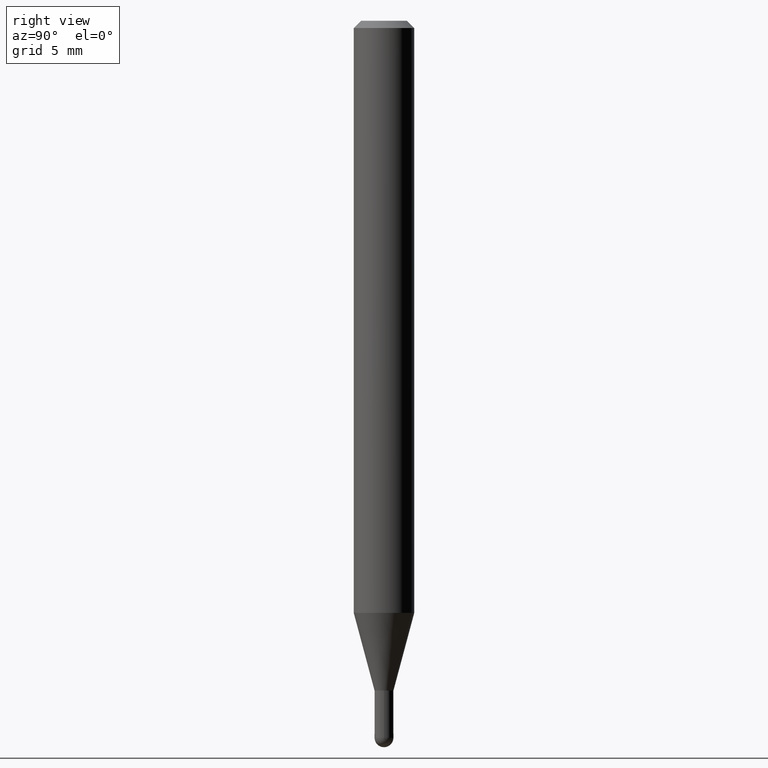
[diagram: clean part render]
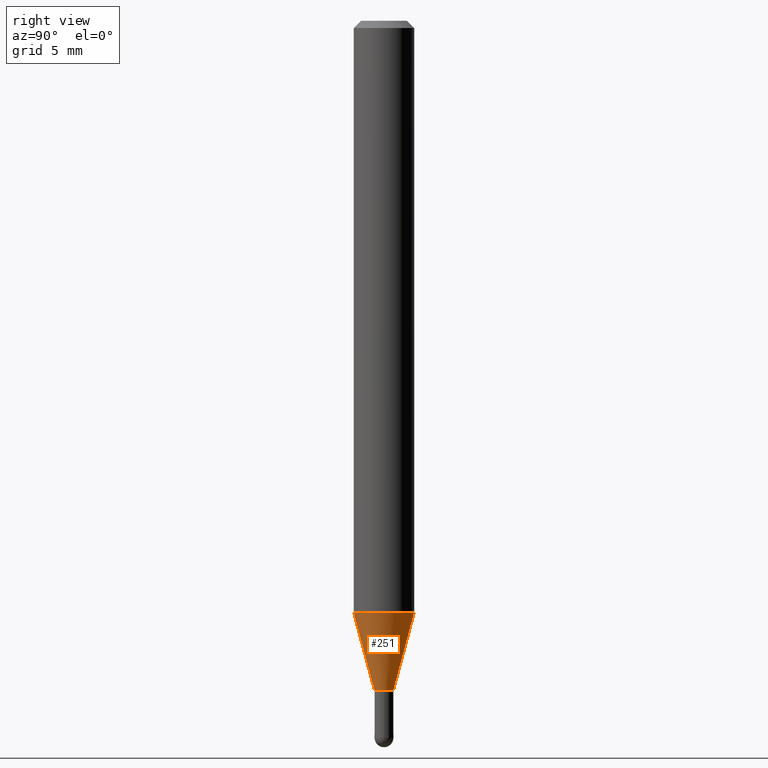
[diagram: same view with one face highlighted and labeled with its STEP entity id]
A machine part, right view. The second image highlights one B-rep face of the part: STEP entity #251.
In plain terms, the highlighted conical surface has half-angle 15 deg.
Its self-contained STEP definition (entity closure, byte-faithful):
#7 = DIRECTION ( 'NONE',  ( -2.445485132504990036E-29, 3.491457958623879198E-15, 1.000000000000000000 ) ) ;
#15 = DIRECTION ( 'NONE',  ( -6.982962677686265922E-15, -1.000000000000000000, 4.370956789862821150E-15 ) ) ;
#18 = CIRCLE ( 'NONE', #369, 0.06250000000000000000 ) ;
#33 = AXIS2_PLACEMENT_3D ( 'NONE', #467, #138, #302 ) ;
#47 = CARTESIAN_POINT ( 'NONE',  ( 2.989658923416908872E-29, -4.268383521531617927E-15, -1.222521815274543844 ) ) ;
#61 = CIRCLE ( 'NONE', #33, 0.01949999999999992017 ) ;
#66 = LINE ( 'NONE', #386, #164 ) ;
#75 = ORIENTED_EDGE ( 'NONE', *, *, #112, .F. ) ;
#90 = DIRECTION ( 'NONE',  ( -2.445485132504990036E-29, 3.491457958623879198E-15, 1.000000000000000000 ) ) ;
#95 = EDGE_CURVE ( 'NONE', #118, #512, #61, .T. ) ;
#96 = FACE_OUTER_BOUND ( 'NONE', #394, .T. ) ;
#110 = ORIENTED_EDGE ( 'NONE', *, *, #95, .T. ) ;
#112 = EDGE_CURVE ( 'NONE', #118, #402, #66, .T. ) ;
#118 = VERTEX_POINT ( 'NONE', #466 ) ;
#123 = CARTESIAN_POINT ( 'NONE',  ( 1.385558334732527668E-16, 0.01949999999999509417, -1.383000000000000451 ) ) ;
#138 = DIRECTION ( 'NONE',  ( -2.445485132504990036E-29, 3.491457958623879198E-15, 1.000000000000000000 ) ) ;
#141 = DIRECTION ( 'NONE',  ( -1.807323732225381415E-15, -0.2588190451025255134, 0.9659258262890669799 ) ) ;
#164 = VECTOR ( 'NONE', #141, 39.37007874015748854 ) ;
#171 = DIRECTION ( 'NONE',  ( -6.982962677686266711E-15, -1.000000000000000000, 0.000000000000000000 ) ) ;
#215 = CARTESIAN_POINT ( 'NONE',  ( 4.440892098500922971E-16, 0.06249999999999571176, -1.222521815274544066 ) ) ;
#225 = EDGE_CURVE ( 'NONE', #402, #282, #18, .T. ) ;
#251 = ADVANCED_FACE ( 'NONE', ( #96 ), #392, .T. ) ;
#282 = VERTEX_POINT ( 'NONE', #215 ) ;
#302 = DIRECTION ( 'NONE',  ( -6.982962677686266711E-15, -1.000000000000000000, 0.000000000000000000 ) ) ;
#331 = LINE ( 'NONE', #123, #341 ) ;
#341 = VECTOR ( 'NONE', #489, 39.37007874015748143 ) ;
#360 = AXIS2_PLACEMENT_3D ( 'NONE', #414, #90, #171 ) ;
#369 = AXIS2_PLACEMENT_3D ( 'NONE', #47, #7, #15 ) ;
#372 = ORIENTED_EDGE ( 'NONE', *, *, #374, .T. ) ;
#374 = EDGE_CURVE ( 'NONE', #512, #282, #331, .T. ) ;
#386 = CARTESIAN_POINT ( 'NONE',  ( -1.361677722148478193E-16, -0.01950000000000474965, -1.383000000000000451 ) ) ;
#392 = CONICAL_SURFACE ( 'NONE', #360, 0.01949999999999992017, 0.2617993877991578455 ) ;
#394 = EDGE_LOOP ( 'NONE', ( #110, #372, #459, #75 ) ) ;
#402 = VERTEX_POINT ( 'NONE', #460 ) ;
#414 = CARTESIAN_POINT ( 'NONE',  ( 3.382105938254402512E-29, -4.828686356776826992E-15, -1.383000000000000451 ) ) ;
#459 = ORIENTED_EDGE ( 'NONE', *, *, #225, .F. ) ;
#460 = CARTESIAN_POINT ( 'NONE',  ( -4.364351673553619392E-16, -0.06250000000000428824, -1.222521815274543622 ) ) ;
#466 = CARTESIAN_POINT ( 'NONE',  ( -1.361677722148478193E-16, -0.01950000000000474965, -1.383000000000000451 ) ) ;
#467 = CARTESIAN_POINT ( 'NONE',  ( 3.382105938254402512E-29, -4.828686356776826992E-15, -1.383000000000000451 ) ) ;
#489 = DIRECTION ( 'NONE',  ( 1.839019923739652380E-15, 0.2588190451025322858, 0.9659258262890650926 ) ) ;
#496 = CARTESIAN_POINT ( 'NONE',  ( 2.913225216616727415E-16, 0.01949999999999509417, -1.383000000000000451 ) ) ;
#512 = VERTEX_POINT ( 'NONE', #496 ) ;